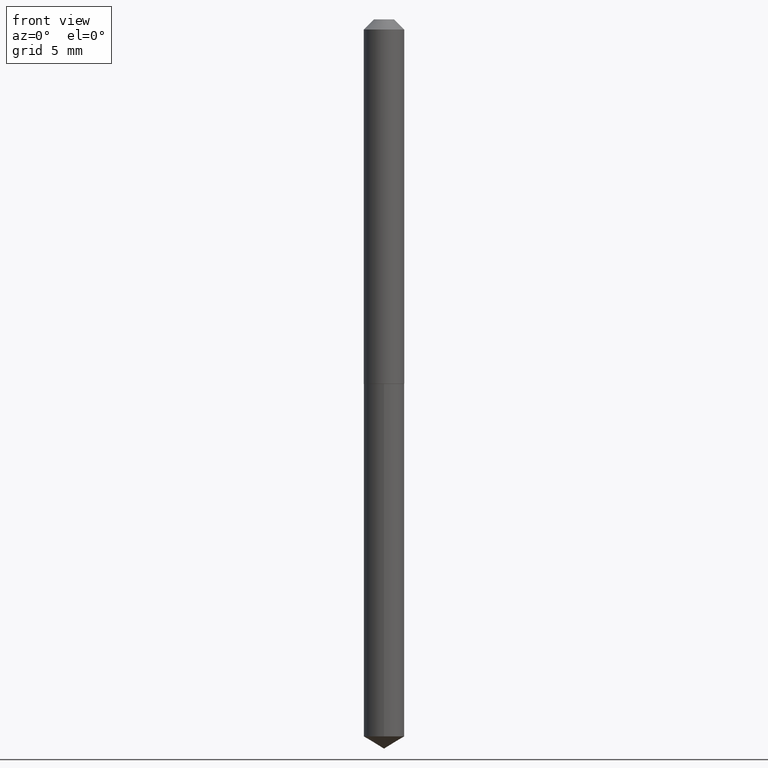
[diagram: clean part render]
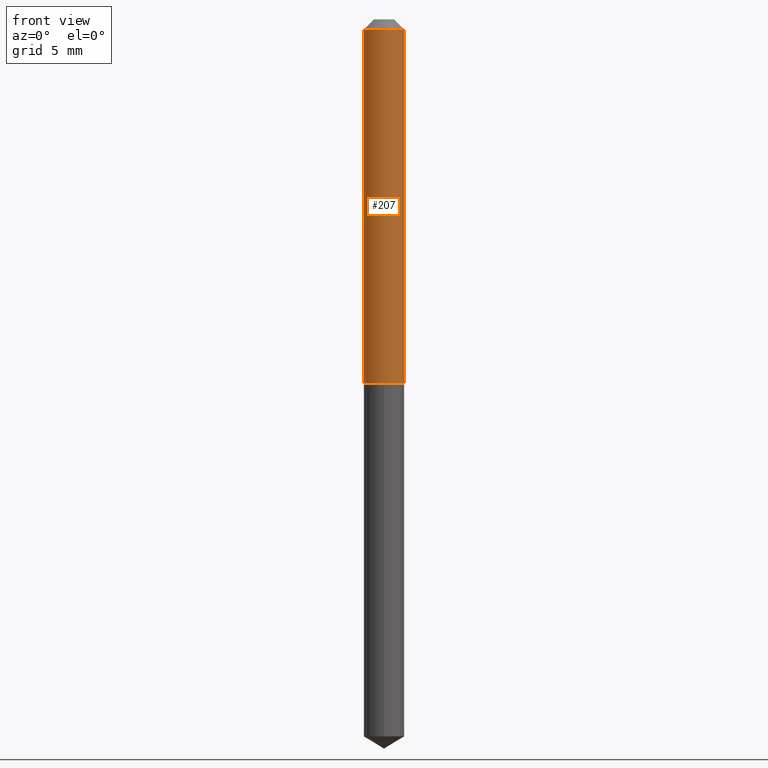
[diagram: same view with one face highlighted and labeled with its STEP entity id]
A machine part, front view. The second image highlights one B-rep face of the part: STEP entity #207.
In plain terms, the highlighted cylindrical surface (edge-blend (fillet) strip) has radius 1.5875 mm, axis along (-0, 0, 1).
Its self-contained STEP definition (entity closure, byte-faithful):
#32 = CYLINDRICAL_SURFACE ( 'NONE', #336, 0.06250000000000006939 ) ;
#50 = VERTEX_POINT ( 'NONE', #276 ) ;
#54 = ORIENTED_EDGE ( 'NONE', *, *, #186, .F. ) ;
#61 = DIRECTION ( 'NONE',  ( 1.000000000000000000, -6.982962677686266711E-15, 0.000000000000000000 ) ) ;
#62 = CARTESIAN_POINT ( 'NONE',  ( 0.000000000000000000, 0.000000000000000000, 0.000000000000000000 ) ) ;
#68 = CARTESIAN_POINT ( 'NONE',  ( -0.06250000000000006939, 4.440892098500631092E-16, -3.074334431409319267E-30 ) ) ;
#82 = VERTEX_POINT ( 'NONE', #167 ) ;
#84 = CARTESIAN_POINT ( 'NONE',  ( 7.642090019328602662E-31, -1.091087918388490267E-16, -0.03125000000000020817 ) ) ;
#99 = FACE_OUTER_BOUND ( 'NONE', #261, .T. ) ;
#126 = LINE ( 'NONE', #68, #252 ) ;
#167 = CARTESIAN_POINT ( 'NONE',  ( 0.06250000000000013878, -4.362605932884509390E-15, -1.124500000000000055 ) ) ;
#185 = CARTESIAN_POINT ( 'NONE',  ( 0.06250000000000006939, -4.364351673553921624E-16, 3.047610484872463374E-30 ) ) ;
#186 = EDGE_CURVE ( 'NONE', #292, #50, #357, .T. ) ;
#187 = AXIS2_PLACEMENT_3D ( 'NONE', #84, #295, #61 ) ;
#188 = DIRECTION ( 'NONE',  ( 1.000000000000000000, -6.982962677686262766E-15, 0.000000000000000000 ) ) ;
#207 = ADVANCED_FACE ( 'NONE', ( #99 ), #32, .T. ) ;
#217 = CARTESIAN_POINT ( 'NONE',  ( -0.06250000000000000000, -1.573550568833919217E-15, -0.03125000000000020817 ) ) ;
#219 = LINE ( 'NONE', #185, #266 ) ;
#225 = ORIENTED_EDGE ( 'NONE', *, *, #346, .F. ) ;
#235 = EDGE_CURVE ( 'NONE', #82, #50, #219, .T. ) ;
#242 = DIRECTION ( 'NONE',  ( 1.000000000000000000, -6.982962677686266711E-15, 4.876176775795935793E-29 ) ) ;
#252 = VECTOR ( 'NONE', #362, 39.37007874015748143 ) ;
#261 = EDGE_LOOP ( 'NONE', ( #225, #309, #297, #54 ) ) ;
#266 = VECTOR ( 'NONE', #279, 39.37007874015748143 ) ;
#269 = DIRECTION ( 'NONE',  ( -2.445468806185136597E-29, 3.491481338843145583E-15, 1.000000000000000000 ) ) ;
#272 = CARTESIAN_POINT ( 'NONE',  ( -0.06250000000000013878, -3.482081555679053527E-15, -1.124500000000000055 ) ) ;
#276 = CARTESIAN_POINT ( 'NONE',  ( 0.06250000000000000000, -5.455439591942406714E-16, -0.03125000000000020817 ) ) ;
#279 = DIRECTION ( 'NONE',  ( -2.445468806185136877E-29, 3.491481338843145188E-15, 1.000000000000000000 ) ) ;
#292 = VERTEX_POINT ( 'NONE', #217 ) ;
#295 = DIRECTION ( 'NONE',  ( -2.445468806185136597E-29, 3.491481338843145583E-15, 1.000000000000000000 ) ) ;
#297 = ORIENTED_EDGE ( 'NONE', *, *, #235, .T. ) ;
#309 = ORIENTED_EDGE ( 'NONE', *, *, #325, .T. ) ;
#325 = EDGE_CURVE ( 'NONE', #338, #82, #348, .T. ) ;
#331 = AXIS2_PLACEMENT_3D ( 'NONE', #389, #385, #188 ) ;
#336 = AXIS2_PLACEMENT_3D ( 'NONE', #62, #269, #242 ) ;
#338 = VERTEX_POINT ( 'NONE', #272 ) ;
#346 = EDGE_CURVE ( 'NONE', #338, #292, #126, .T. ) ;
#348 = CIRCLE ( 'NONE', #331, 0.06250000000000013878 ) ;
#357 = CIRCLE ( 'NONE', #187, 0.06250000000000000000 ) ;
#362 = DIRECTION ( 'NONE',  ( -2.445468806185136877E-29, 3.491481338843145188E-15, 1.000000000000000000 ) ) ;
#385 = DIRECTION ( 'NONE',  ( -2.445468806185136597E-29, 3.491481338843145583E-15, 1.000000000000000000 ) ) ;
#389 = CARTESIAN_POINT ( 'NONE',  ( 2.749929672555185870E-29, -3.926170765529116932E-15, -1.124500000000000055 ) ) ;